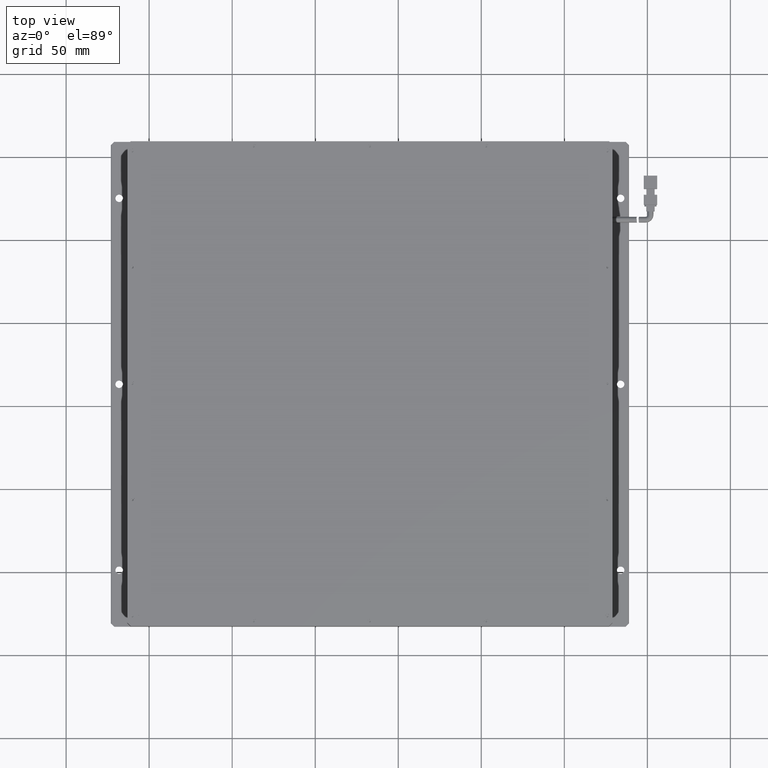
[diagram: clean part render]
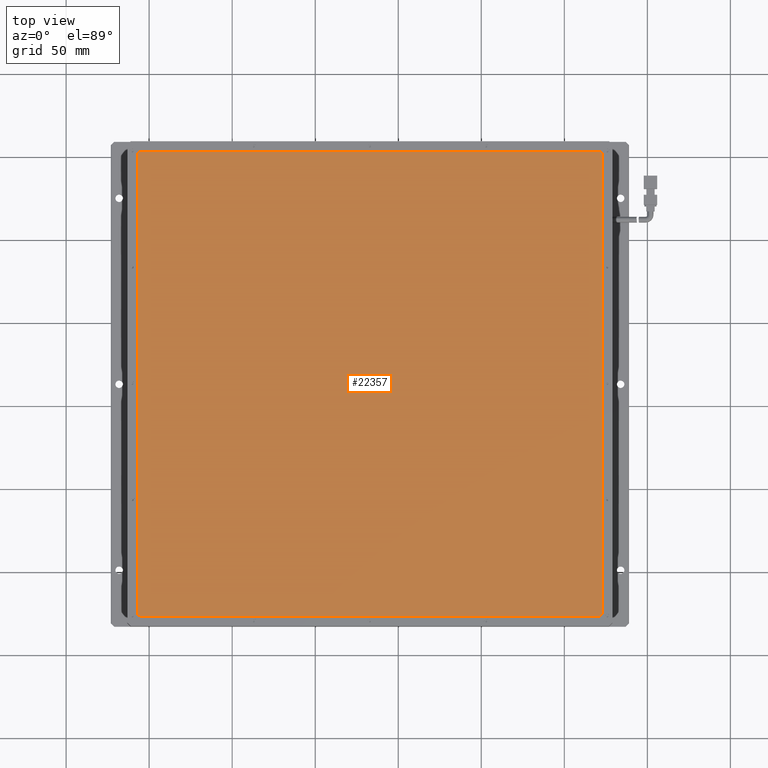
[diagram: same view with one face highlighted and labeled with its STEP entity id]
A machine part, top view. The second image highlights one B-rep face of the part: STEP entity #22357.
In plain terms, the highlighted planar face has unit normal (0, 0, 1).
Its self-contained STEP definition (entity closure, byte-faithful):
#1573 = CARTESIAN_POINT ( 'NONE',  ( 170.9193228736581300, -126.7301954307734100, 10.59999999997180500 ) ) ;
#1769 = VERTEX_POINT ( 'NONE', #4651 ) ;
#2081 = DIRECTION ( 'NONE',  ( -0.0000000000000000000, 1.000000000000000000, -0.0000000000000000000 ) ) ;
#2196 = ORIENTED_EDGE ( 'NONE', *, *, #17882, .T. ) ;
#2292 = ORIENTED_EDGE ( 'NONE', *, *, #27773, .T. ) ;
#2398 = VERTEX_POINT ( 'NONE', #11405 ) ;
#2665 = DIRECTION ( 'NONE',  ( 0.0000000000000000000, 0.0000000000000000000, 1.000000000000000000 ) ) ;
#2896 = DIRECTION ( 'NONE',  ( 0.0000000000000000000, 0.0000000000000000000, 1.000000000000000000 ) ) ;
#2918 = CARTESIAN_POINT ( 'NONE',  ( -107.0806771263419000, -124.7301954307734100, 10.59999999997180500 ) ) ;
#3074 = LINE ( 'NONE', #15027, #19579 ) ;
#4629 = VERTEX_POINT ( 'NONE', #10076 ) ;
#4651 = CARTESIAN_POINT ( 'NONE',  ( -107.0806771263419000, 151.2698045692266100, 10.59999999997180500 ) ) ;
#4941 = DIRECTION ( 'NONE',  ( 0.0000000000000000000, 0.0000000000000000000, 1.000000000000000000 ) ) ;
#6072 = FACE_OUTER_BOUND ( 'NONE', #20087, .T. ) ;
#6110 = DIRECTION ( 'NONE',  ( 0.0000000000000000000, 0.0000000000000000000, 1.000000000000000000 ) ) ;
#6138 = ORIENTED_EDGE ( 'NONE', *, *, #13814, .T. ) ;
#6946 = PLANE ( 'NONE',  #16663 ) ;
#7044 = CARTESIAN_POINT ( 'NONE',  ( 170.9193228736581300, -124.7301954307734100, 10.59999999997180500 ) ) ;
#8610 = LINE ( 'NONE', #2918, #19388 ) ;
#8851 = CIRCLE ( 'NONE', #11537, 2.000000000000001800 ) ;
#9189 = DIRECTION ( 'NONE',  ( 1.000000000000000000, 0.0000000000000000000, -0.0000000000000000000 ) ) ;
#10076 = CARTESIAN_POINT ( 'NONE',  ( 172.9193228736581300, 151.2698045692266100, 10.59999999997180500 ) ) ;
#10439 = CARTESIAN_POINT ( 'NONE',  ( 170.9193228736581300, -126.7301954307734100, 10.59999999997180500 ) ) ;
#11216 = CARTESIAN_POINT ( 'NONE',  ( -105.0806771263419000, -126.7301954307734100, 10.59999999997180500 ) ) ;
#11260 = AXIS2_PLACEMENT_3D ( 'NONE', #18996, #6110, #21114 ) ;
#11405 = CARTESIAN_POINT ( 'NONE',  ( -105.0806771263419000, 153.2698045692266100, 10.59999999997180500 ) ) ;
#11473 = DIRECTION ( 'NONE',  ( -0.0000000000000000000, -1.000000000000000000, -0.0000000000000000000 ) ) ;
#11536 = ORIENTED_EDGE ( 'NONE', *, *, #23732, .T. ) ;
#11537 = AXIS2_PLACEMENT_3D ( 'NONE', #15564, #2665, #17761 ) ;
#11838 = VERTEX_POINT ( 'NONE', #13769 ) ;
#12733 = CARTESIAN_POINT ( 'NONE',  ( 170.9193228736581300, 153.2698045692266100, 10.59999999997180500 ) ) ;
#13769 = CARTESIAN_POINT ( 'NONE',  ( -107.0806771263419000, -124.7301954307734100, 10.59999999997180500 ) ) ;
#13814 = EDGE_CURVE ( 'NONE', #21286, #2398, #23178, .T. ) ;
#14359 = DIRECTION ( 'NONE',  ( -1.000000000000000000, -0.0000000000000000000, -0.0000000000000000000 ) ) ;
#14721 = AXIS2_PLACEMENT_3D ( 'NONE', #17897, #4941, #19996 ) ;
#14850 = CARTESIAN_POINT ( 'NONE',  ( 172.9193228736581300, -124.7301954307734100, 10.59999999997180500 ) ) ;
#15027 = CARTESIAN_POINT ( 'NONE',  ( 172.9193228736581300, 151.2698045692266100, 10.59999999997180500 ) ) ;
#15564 = CARTESIAN_POINT ( 'NONE',  ( -105.0806771263419000, -124.7301954307734100, 10.59999999997180500 ) ) ;
#15812 = CARTESIAN_POINT ( 'NONE',  ( 170.9193228736581300, -124.7301954307734100, 10.59999999997180500 ) ) ;
#15813 = VERTEX_POINT ( 'NONE', #11216 ) ;
#16663 = AXIS2_PLACEMENT_3D ( 'NONE', #7044, #21963, #9189 ) ;
#16801 = VECTOR ( 'NONE', #19123, 1000.000000000000000 ) ;
#16828 = EDGE_CURVE ( 'NONE', #23881, #27099, #26058, .T. ) ;
#17614 = VECTOR ( 'NONE', #14359, 1000.000000000000000 ) ;
#17758 = CIRCLE ( 'NONE', #11260, 2.000000000000001800 ) ;
#17761 = DIRECTION ( 'NONE',  ( 1.000000000000000000, 0.0000000000000000000, 0.0000000000000000000 ) ) ;
#17882 = EDGE_CURVE ( 'NONE', #11838, #15813, #8851, .T. ) ;
#17897 = CARTESIAN_POINT ( 'NONE',  ( -105.0806771263419000, 151.2698045692266100, 10.59999999997180500 ) ) ;
#17995 = DIRECTION ( 'NONE',  ( 1.000000000000000000, 0.0000000000000000000, 0.0000000000000000000 ) ) ;
#18147 = ORIENTED_EDGE ( 'NONE', *, *, #26346, .T. ) ;
#18996 = CARTESIAN_POINT ( 'NONE',  ( 170.9193228736581300, 151.2698045692266100, 10.59999999997180500 ) ) ;
#19123 = DIRECTION ( 'NONE',  ( 1.000000000000000000, -0.0000000000000000000, -0.0000000000000000000 ) ) ;
#19388 = VECTOR ( 'NONE', #11473, 1000.000000000000000 ) ;
#19579 = VECTOR ( 'NONE', #2081, 1000.000000000000000 ) ;
#19996 = DIRECTION ( 'NONE',  ( 1.000000000000000000, 0.0000000000000000000, 0.0000000000000000000 ) ) ;
#20087 = EDGE_LOOP ( 'NONE', ( #23835, #18147, #11536, #6138, #2292, #24126, #2196, #21417 ) ) ;
#21114 = DIRECTION ( 'NONE',  ( 1.000000000000000000, 0.0000000000000000000, 0.0000000000000000000 ) ) ;
#21286 = VERTEX_POINT ( 'NONE', #12733 ) ;
#21417 = ORIENTED_EDGE ( 'NONE', *, *, #27100, .T. ) ;
#21963 = DIRECTION ( 'NONE',  ( 0.0000000000000000000, 0.0000000000000000000, 1.000000000000000000 ) ) ;
#22357 = ADVANCED_FACE ( 'NONE', ( #6072 ), #6946, .T. ) ;
#22381 = LINE ( 'NONE', #10439, #16801 ) ;
#22921 = AXIS2_PLACEMENT_3D ( 'NONE', #15812, #2896, #17995 ) ;
#23178 = LINE ( 'NONE', #24824, #17614 ) ;
#23500 = EDGE_CURVE ( 'NONE', #1769, #11838, #8610, .T. ) ;
#23732 = EDGE_CURVE ( 'NONE', #4629, #21286, #17758, .T. ) ;
#23835 = ORIENTED_EDGE ( 'NONE', *, *, #16828, .T. ) ;
#23881 = VERTEX_POINT ( 'NONE', #1573 ) ;
#24126 = ORIENTED_EDGE ( 'NONE', *, *, #23500, .T. ) ;
#24824 = CARTESIAN_POINT ( 'NONE',  ( -105.0806771263419000, 153.2698045692266100, 10.59999999997180500 ) ) ;
#26058 = CIRCLE ( 'NONE', #22921, 2.000000000000001800 ) ;
#26346 = EDGE_CURVE ( 'NONE', #27099, #4629, #3074, .T. ) ;
#27099 = VERTEX_POINT ( 'NONE', #14850 ) ;
#27100 = EDGE_CURVE ( 'NONE', #15813, #23881, #22381, .T. ) ;
#27478 = CIRCLE ( 'NONE', #14721, 2.000000000000001800 ) ;
#27773 = EDGE_CURVE ( 'NONE', #2398, #1769, #27478, .T. ) ;